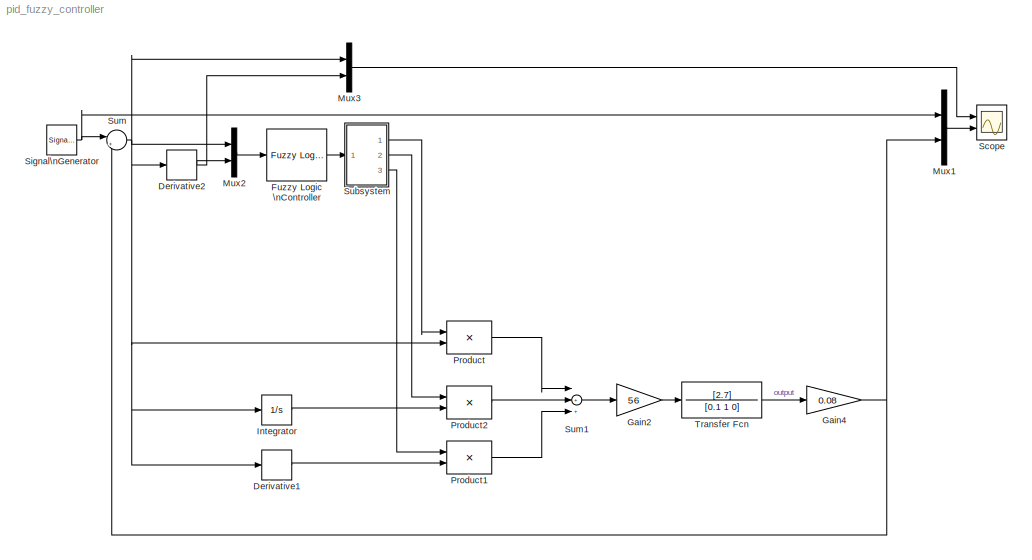
MODEL pid_fuzzy_controller
KIND model
BLOCK [Derivative] Derivative1
BLOCK [Derivative] Derivative2
BLOCK [Reference] Fuzzy Logic \nController  REF=fuzblock/Fuzzy Logic \nController  (lib defined in mdl_858b3b3e7478)
  Ports = [1, 1]
  ShowPortLabels = on
  SourceBlock = fuzblock/Fuzzy Logic \nController
  SourceType = FIS
  fis = fuzzy_pid
BLOCK [Gain] Gain2
  Gain = 56
BLOCK [Gain] Gain4
  Gain = 0.08
BLOCK [Integrator] Integrator
  IgnoreLimit = off
  Ports = [1, 1]
BLOCK [Mux] Mux1
  DisplayOption = bar
  Inputs = 2
  Ports = [2, 1]
BLOCK [Mux] Mux2
  DisplayOption = bar
  Inputs = 2
  Ports = [2, 1]
BLOCK [Mux] Mux3
  DisplayOption = bar
  Inputs = 2
  Ports = [2, 1]
BLOCK [Product] Product
  Ports = [2, 1]
BLOCK [Product] Product1
  Ports = [2, 1]
BLOCK [Product] Product2
  Ports = [2, 1]
BLOCK [Scope] Scope
  DataFormat = StructureWithTime
  Floating = off
  MaxDataPoints = 10000
  NumInputPorts = 2
  Ports = [2]
  SampleTime = 0
  TimeRange = 10
  YMax = 5.5~0.39
  YMin = 0~0.25
  ZoomMode = yonly
BLOCK [SignalGenerator] Signal\nGenerator
  Amplitude = 10
  Frequency = 5
  Ports = [0, 1]
  Units = rad/sec
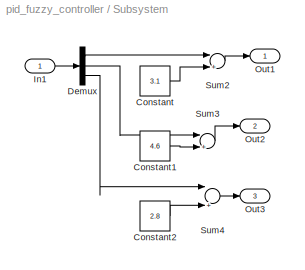
BLOCK [SubSystem] Subsystem
  MaskHideContents = off
  MinAlgLoopOccurrences = off
  Ports = [1, 3]
  RTWSystemCode = Auto
  TreatAsAtomicUnit = off
BLOCK [Constant] Subsystem/Constant
  Value = 3.1
BLOCK [Constant] Subsystem/Constant1
  Value = 4.6
BLOCK [Constant] Subsystem/Constant2
  Value = 2.8
BLOCK [Demux] Subsystem/Demux
  Outputs = 3
  Ports = [1, 3]
BLOCK [Inport] Subsystem/In1
  IconDisplay = Port number
BLOCK [Outport] Subsystem/Out1
  BusOutputAsStruct = off
  IconDisplay = Port number
BLOCK [Outport] Subsystem/Out2
  BusOutputAsStruct = off
  IconDisplay = Port number
  Port = 2
BLOCK [Outport] Subsystem/Out3
  BusOutputAsStruct = off
  IconDisplay = Port number
  Port = 3
BLOCK [Sum] Subsystem/Sum2
  Inputs = |++
  Ports = [2, 1]
BLOCK [Sum] Subsystem/Sum3
  Inputs = |++
  Ports = [2, 1]
BLOCK [Sum] Subsystem/Sum4
  Inputs = |++
  Ports = [2, 1]
BLOCK [Sum] Sum
  IconShape = round
  Inputs = |+-
  Ports = [2, 1]
BLOCK [Sum] Sum1
  Inputs = |+++
  Ports = [3, 1]
BLOCK [TransferFcn] Transfer Fcn
  Denominator = [0.1 1 0]
  Numerator = [2.7]
LINE Derivative1:1 -> Product1:2
NET Derivative2:1 -> Mux2:2, Mux3:2
LINE Fuzzy Logic \nController:1 -> Subsystem:1
LINE Gain2:1 -> Transfer Fcn:1
NET Gain4:1 -> Mux1:2, Sum:2
LINE Integrator:1 -> Product2:2
LINE Mux1:1 -> Scope:2
LINE Mux2:1 -> Fuzzy Logic \nController:1
LINE Mux3:1 -> Scope:1
LINE Product1:1 -> Sum1:3
LINE Product2:1 -> Sum1:2
LINE Product:1 -> Sum1:1
NET Signal\nGenerator:1 -> Mux1:1, Sum:1
LINE Subsystem/Constant1:1 -> Subsystem/Sum3:2
LINE Subsystem/Constant2:1 -> Subsystem/Sum4:2
LINE Subsystem/Constant:1 -> Subsystem/Sum2:2
LINE Subsystem/Demux:1 -> Subsystem/Sum2:1
LINE Subsystem/Demux:2 -> Subsystem/Sum3:1
LINE Subsystem/Demux:3 -> Subsystem/Sum4:1
LINE Subsystem/In1:1 -> Subsystem/Demux:1
LINE Subsystem/Sum2:1 -> Subsystem/Out1:1
LINE Subsystem/Sum3:1 -> Subsystem/Out2:1
LINE Subsystem/Sum4:1 -> Subsystem/Out3:1
LINE Subsystem:1 -> Product:1
LINE Subsystem:2 -> Product2:1
LINE Subsystem:3 -> Product1:1
LINE Sum1:1 -> Gain2:1
NET Sum:1 -> Derivative1:1, Derivative2:1, Integrator:1, Mux2:1, Mux3:1, Product:2
LINE Transfer Fcn:1 -> Gain4:1
note: NET lines group one-source signal fan-out (src -> all destinations, sorted); 1:1 wires keep LINE
